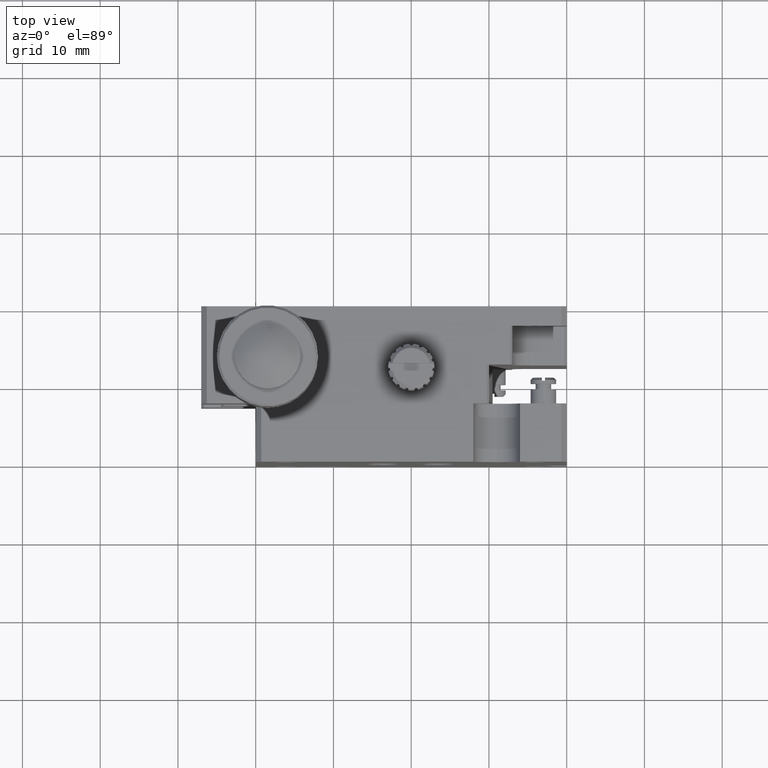
[diagram: clean part render]
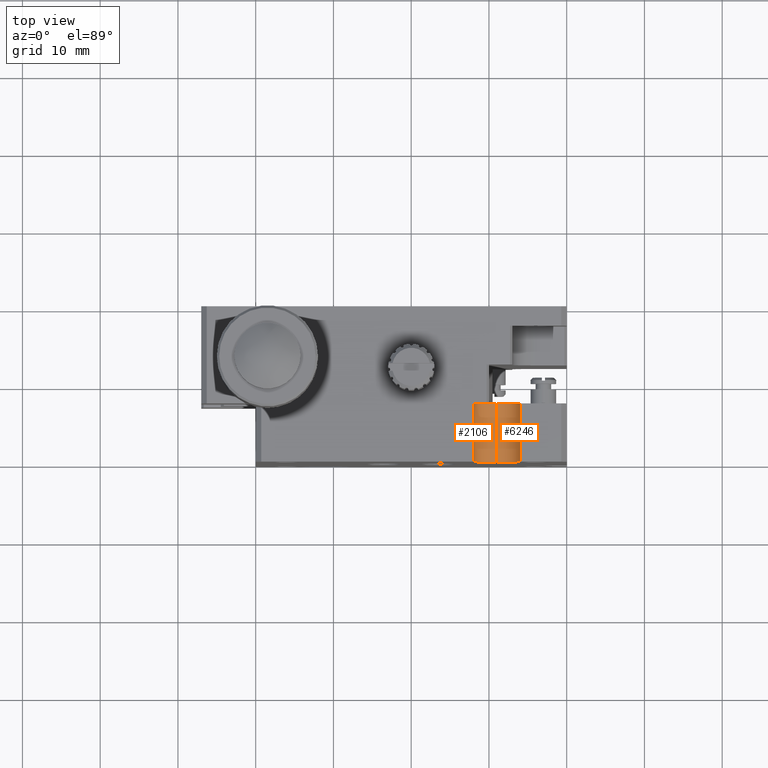
[diagram: same view with one multi-face feature highlighted, each face labeled with its STEP entity id]
A machine part, top view. The highlighted faces form ONE feature: a constant-radius fillet chain: 2 tangent blend faces with common blend radius 3 mm. The faces share edges in the B-rep.
Their STEP definitions:
[1] entity #2106 (Cylinder):
#31 = VERTEX_POINT ( 'NONE', #5717 ) ;
#104 = VERTEX_POINT ( 'NONE', #5840 ) ;
#884 = AXIS2_PLACEMENT_3D ( 'NONE', #8118, #8109, #8129 ) ;
#1429 = AXIS2_PLACEMENT_3D ( 'NONE', #5140, #5123, #5166 ) ;
#1733 = ORIENTED_EDGE ( 'NONE', *, *, #10172, .F. ) ;
#1778 = ORIENTED_EDGE ( 'NONE', *, *, #6893, .F. ) ;
#1817 = ORIENTED_EDGE ( 'NONE', *, *, #10139, .F. ) ;
#1819 = ORIENTED_EDGE ( 'NONE', *, *, #10154, .T. ) ;
#1933 = AXIS2_PLACEMENT_3D ( 'NONE', #8489, #8481, #8503 ) ;
#2106 = ADVANCED_FACE ( 'NONE', ( #6675 ), #6647, .F. ) ;
#2724 = EDGE_LOOP ( 'NONE', ( #1733, #1778, #1817, #1819 ) ) ;
#3573 = VERTEX_POINT ( 'NONE', #7904 ) ;
#3581 = VERTEX_POINT ( 'NONE', #7903 ) ;
#5123 = DIRECTION ( 'NONE',  ( 0.0000000000000000000, -1.000000000000000000, 0.0000000000000000000 ) ) ;
#5140 = CARTESIAN_POINT ( 'NONE',  ( 31.00000000000000000, 7.500000000000000000, 6.288372600415929700E-015 ) ) ;
#5166 = DIRECTION ( 'NONE',  ( 0.0000000000000000000, 0.0000000000000000000, -1.000000000000000000 ) ) ;
#5717 = CARTESIAN_POINT ( 'NONE',  ( 28.00000000000000000, 0.0000000000000000000, 8.094066795400181400E-016 ) ) ;
#5840 = CARTESIAN_POINT ( 'NONE',  ( 28.00000000000000000, 7.500000000000000000, 7.551965709157433200E-016 ) ) ;
#6647 = CYLINDRICAL_SURFACE ( 'NONE', #1429, 3.000000000000000000 ) ;
#6675 = FACE_OUTER_BOUND ( 'NONE', #2724, .T. ) ;
#6893 = EDGE_CURVE ( 'NONE', #104, #3573, #8903, .T. ) ;
#7903 = CARTESIAN_POINT ( 'NONE',  ( 31.00000000000000000, 0.0000000000000000000, -2.999999999999993300 ) ) ;
#7904 = CARTESIAN_POINT ( 'NONE',  ( 31.00000000000000000, 7.500000000000000000, -2.999999999999993300 ) ) ;
#8053 = CARTESIAN_POINT ( 'NONE',  ( 28.00000000000000000, 7.500000000000000000, 1.510393141831486600E-015 ) ) ;
#8057 = DIRECTION ( 'NONE',  ( -0.0000000000000000000, 1.000000000000000000, -0.0000000000000000000 ) ) ;
#8109 = DIRECTION ( 'NONE',  ( 0.0000000000000000000, -1.000000000000000000, 0.0000000000000000000 ) ) ;
#8118 = CARTESIAN_POINT ( 'NONE',  ( 31.00000000000000000, 0.0000000000000000000, 6.288372600415929700E-015 ) ) ;
#8129 = DIRECTION ( 'NONE',  ( 0.0000000000000000000, 0.0000000000000000000, -1.000000000000000000 ) ) ;
#8155 = DIRECTION ( 'NONE',  ( 0.0000000000000000000, -1.000000000000000000, 0.0000000000000000000 ) ) ;
#8158 = CARTESIAN_POINT ( 'NONE',  ( 31.00000000000000000, 7.500000000000000000, -2.999999999999993300 ) ) ;
#8481 = DIRECTION ( 'NONE',  ( 0.0000000000000000000, -1.000000000000000000, 0.0000000000000000000 ) ) ;
#8489 = CARTESIAN_POINT ( 'NONE',  ( 31.00000000000000000, 7.500000000000000000, 6.288372600415929700E-015 ) ) ;
#8503 = DIRECTION ( 'NONE',  ( 0.0000000000000000000, 0.0000000000000000000, -1.000000000000000000 ) ) ;
#8903 = CIRCLE ( 'NONE', #1933, 3.000000000000000000 ) ;
#9179 = VECTOR ( 'NONE', #8057, 1000.000000000000000 ) ;
#9191 = LINE ( 'NONE', #8158, #9193 ) ;
#9193 = VECTOR ( 'NONE', #8155, 1000.000000000000000 ) ;
#9201 = CIRCLE ( 'NONE', #884, 3.000000000000000000 ) ;
#9228 = LINE ( 'NONE', #8053, #9179 ) ;
#10139 = EDGE_CURVE ( 'NONE', #31, #104, #9228, .T. ) ;
#10154 = EDGE_CURVE ( 'NONE', #31, #3581, #9201, .T. ) ;
#10172 = EDGE_CURVE ( 'NONE', #3573, #3581, #9191, .T. ) ;
[2] entity #6246 (Cylinder):
#955 = AXIS2_PLACEMENT_3D ( 'NONE', #3313, #3333, #3327 ) ;
#1037 = AXIS2_PLACEMENT_3D ( 'NONE', #3362, #3357, #3336 ) ;
#1832 = AXIS2_PLACEMENT_3D ( 'NONE', #8387, #8356, #8357 ) ;
#2021 = EDGE_LOOP ( 'NONE', ( #2572, #2587, #2548, #2560 ) ) ;
#2548 = ORIENTED_EDGE ( 'NONE', *, *, #10219, .T. ) ;
#2560 = ORIENTED_EDGE ( 'NONE', *, *, #10213, .T. ) ;
#2572 = ORIENTED_EDGE ( 'NONE', *, *, #10225, .F. ) ;
#2587 = ORIENTED_EDGE ( 'NONE', *, *, #10172, .T. ) ;
#3279 = CARTESIAN_POINT ( 'NONE',  ( 34.00000000000000000, 7.500000000000000000, 0.0000000000000000000 ) ) ;
#3302 = DIRECTION ( 'NONE',  ( 0.0000000000000000000, 1.000000000000000000, 0.0000000000000000000 ) ) ;
#3313 = CARTESIAN_POINT ( 'NONE',  ( 31.00000000000000000, 0.0000000000000000000, 6.288372600415929700E-015 ) ) ;
#3327 = DIRECTION ( 'NONE',  ( 0.0000000000000000000, 0.0000000000000000000, -1.000000000000000000 ) ) ;
#3333 = DIRECTION ( 'NONE',  ( 0.0000000000000000000, -1.000000000000000000, 0.0000000000000000000 ) ) ;
#3336 = DIRECTION ( 'NONE',  ( 0.0000000000000000000, 0.0000000000000000000, -1.000000000000000000 ) ) ;
#3357 = DIRECTION ( 'NONE',  ( 0.0000000000000000000, -1.000000000000000000, 0.0000000000000000000 ) ) ;
#3362 = CARTESIAN_POINT ( 'NONE',  ( 31.00000000000000000, 7.500000000000000000, 6.288372600415929700E-015 ) ) ;
#3573 = VERTEX_POINT ( 'NONE', #7904 ) ;
#3581 = VERTEX_POINT ( 'NONE', #7903 ) ;
#3705 = VERTEX_POINT ( 'NONE', #7954 ) ;
#3715 = VERTEX_POINT ( 'NONE', #7985 ) ;
#6246 = ADVANCED_FACE ( 'NONE', ( #9957 ), #9992, .F. ) ;
#7903 = CARTESIAN_POINT ( 'NONE',  ( 31.00000000000000000, 0.0000000000000000000, -2.999999999999993300 ) ) ;
#7904 = CARTESIAN_POINT ( 'NONE',  ( 31.00000000000000000, 7.500000000000000000, -2.999999999999993300 ) ) ;
#7954 = CARTESIAN_POINT ( 'NONE',  ( 34.00000000000000000, 7.500000000000000000, 0.0000000000000000000 ) ) ;
#7985 = CARTESIAN_POINT ( 'NONE',  ( 34.00000000000000000, 0.0000000000000000000, 1.776356839400250100E-015 ) ) ;
#8155 = DIRECTION ( 'NONE',  ( 0.0000000000000000000, -1.000000000000000000, 0.0000000000000000000 ) ) ;
#8158 = CARTESIAN_POINT ( 'NONE',  ( 31.00000000000000000, 7.500000000000000000, -2.999999999999993300 ) ) ;
#8356 = DIRECTION ( 'NONE',  ( 0.0000000000000000000, -1.000000000000000000, 0.0000000000000000000 ) ) ;
#8357 = DIRECTION ( 'NONE',  ( 0.0000000000000000000, 0.0000000000000000000, -1.000000000000000000 ) ) ;
#8387 = CARTESIAN_POINT ( 'NONE',  ( 31.00000000000000000, 7.500000000000000000, 6.288372600415929700E-015 ) ) ;
#9191 = LINE ( 'NONE', #8158, #9193 ) ;
#9193 = VECTOR ( 'NONE', #8155, 1000.000000000000000 ) ;
#9261 = VECTOR ( 'NONE', #3302, 1000.000000000000000 ) ;
#9290 = LINE ( 'NONE', #3279, #9261 ) ;
#9302 = CIRCLE ( 'NONE', #1037, 3.000000000000000000 ) ;
#9312 = CIRCLE ( 'NONE', #955, 3.000000000000000000 ) ;
#9957 = FACE_OUTER_BOUND ( 'NONE', #2021, .T. ) ;
#9992 = CYLINDRICAL_SURFACE ( 'NONE', #1832, 3.000000000000000000 ) ;
#10172 = EDGE_CURVE ( 'NONE', #3573, #3581, #9191, .T. ) ;
#10213 = EDGE_CURVE ( 'NONE', #3715, #3705, #9290, .T. ) ;
#10219 = EDGE_CURVE ( 'NONE', #3581, #3715, #9312, .T. ) ;
#10225 = EDGE_CURVE ( 'NONE', #3573, #3705, #9302, .T. ) ;